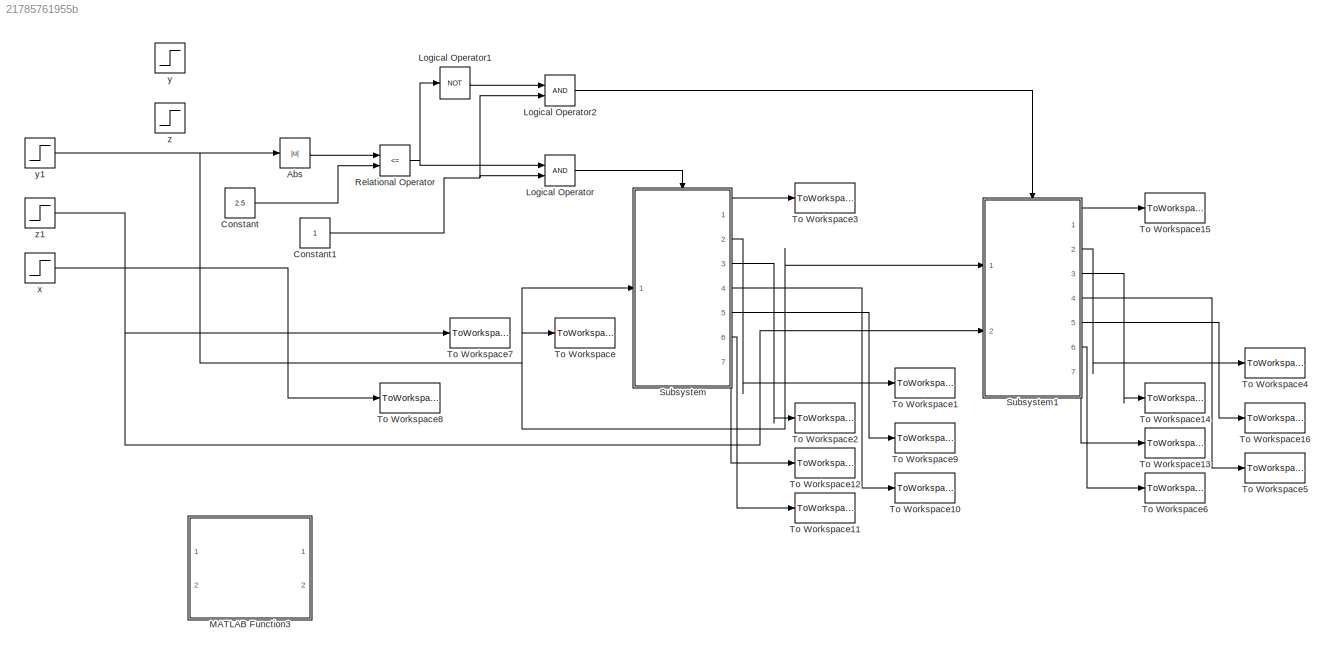
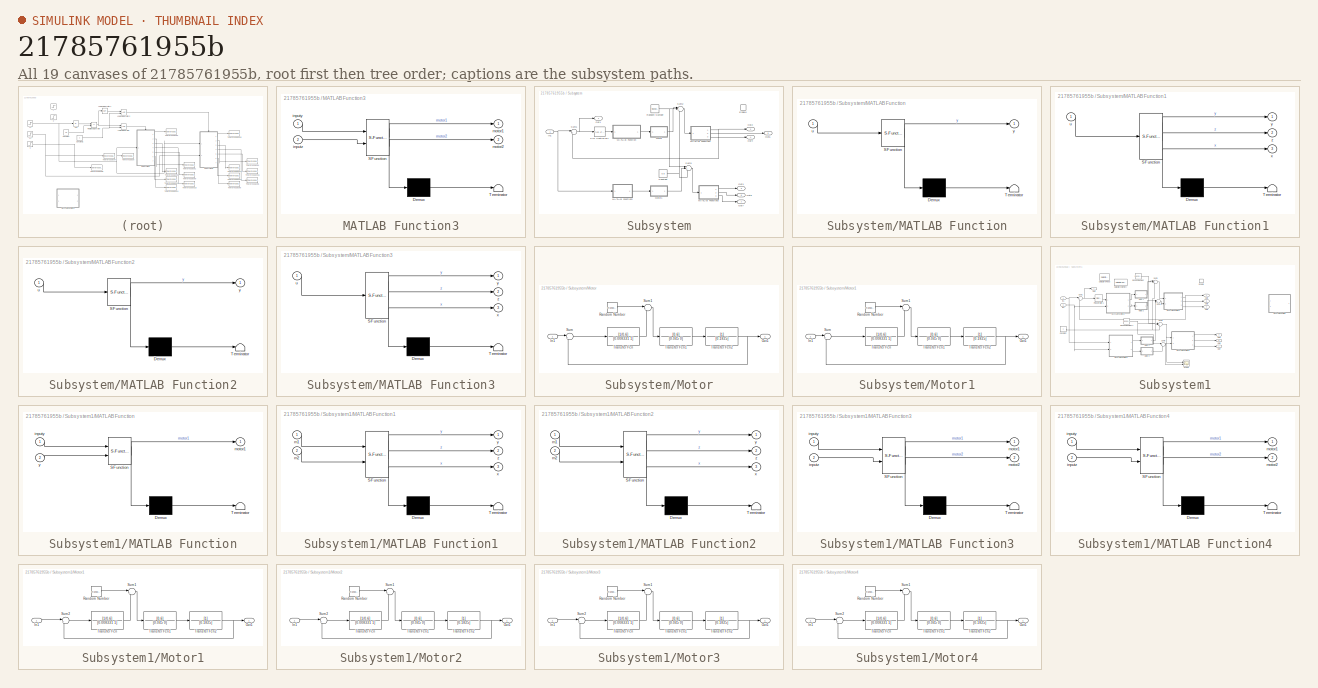
[diagram: thumbnail index - all 19 canvases of the model, root first then tree order]
MODEL slx_21785761955b
KIND model
CONFIG AbsTol = auto
CONFIG FixedStep = 0.01
CONFIG MaxStep = auto
CONFIG MinStep = auto
CONFIG RelTol = 1e-3
CONFIG SampleTimeConstraint = Unconstrained
CONFIG Solver = ode5
CONFIG SolverMode = Auto
CONFIG SolverName = ode5
CONFIG StartTime = 0.0
CONFIG StopTime = 10
BLOCK [Abs] Abs
  SaturateOnIntegerOverflow = off
BLOCK [Constant] Constant
  Value = 2.5
BLOCK [Constant] Constant1
BLOCK [Logic] Logical Operator
  AllPortsSameDT = off
  OutDataTypeStr = boolean
  Ports = [2, 1]
BLOCK [Logic] Logical Operator1
  AllPortsSameDT = off
  Operator = NOT
  OutDataTypeStr = boolean
  Ports = [1, 1]
BLOCK [Logic] Logical Operator2
  AllPortsSameDT = off
  OutDataTypeStr = boolean
  Ports = [2, 1]
BLOCK [SubSystem] MATLAB Function3
  ErrorFcn = Stateflow.Translate.translate
  PermitHierarchicalResolution = ExplicitOnly
  Ports = [2, 2]
  RequestExecContextInheritance = off
  SFBlockType = MATLAB Function
  TreatAsAtomicUnit = on
BLOCK [Demux] MATLAB Function3/ Demux 
  Outputs = 1
  Ports = [1, 1]
BLOCK [S-Function] MATLAB Function3/ SFunction 
  EnableBusSupport = on
  FunctionName = sf_sfun
  PortCounts = [2 3]
  Ports = [2, 3]
  Tag = Stateflow S-Function needle 10
BLOCK [Terminator] MATLAB Function3/ Terminator 
BLOCK [Inport] MATLAB Function3/inputy
  IconDisplay = Port number
BLOCK [Inport] MATLAB Function3/inputz
  IconDisplay = Port number
  Port = 2
BLOCK [Outport] MATLAB Function3/motor1
  IconDisplay = Port number
BLOCK [Outport] MATLAB Function3/motor2
  IconDisplay = Port number
  Port = 2
BLOCK [RelationalOperator] Relational Operator
  InputSameDT = off
  Operator = <=
  OutDataTypeStr = boolean
  Ports = [2, 1]
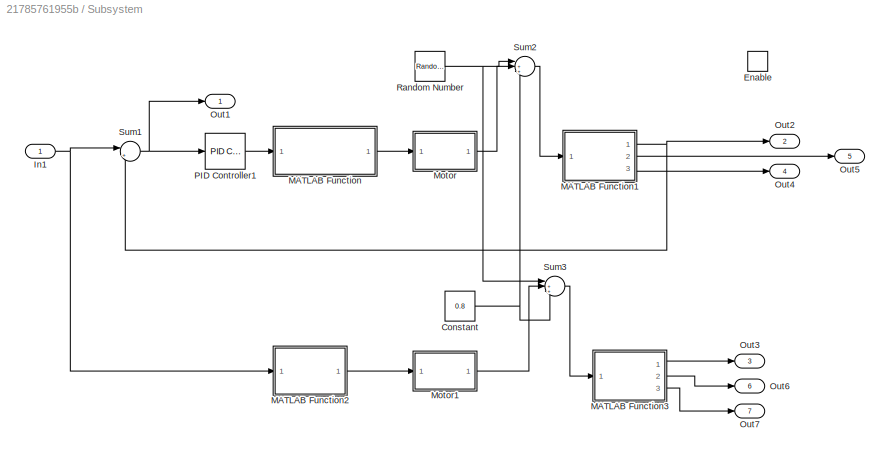
BLOCK [SubSystem] Subsystem
  Ports = [1, 7, 1]
  RequestExecContextInheritance = off
BLOCK [Constant] Subsystem/Constant
  Value = 0.8
BLOCK [EnablePort] Subsystem/Enable
  Ports = []
BLOCK [Inport] Subsystem/In1
  IconDisplay = Port number
BLOCK [SubSystem] Subsystem/MATLAB Function
  ErrorFcn = Stateflow.Translate.translate
  PermitHierarchicalResolution = ExplicitOnly
  Ports = [1, 1]
  RequestExecContextInheritance = off
  SFBlockType = MATLAB Function
  TreatAsAtomicUnit = on
BLOCK [Demux] Subsystem/MATLAB Function/ Demux 
  Outputs = 1
  Ports = [1, 1]
BLOCK [S-Function] Subsystem/MATLAB Function/ SFunction 
  EnableBusSupport = on
  FunctionName = sf_sfun
  PortCounts = [1 2]
  Ports = [1, 2]
  Tag = Stateflow S-Function needle 2
BLOCK [Terminator] Subsystem/MATLAB Function/ Terminator 
BLOCK [Inport] Subsystem/MATLAB Function/u
  IconDisplay = Port number
BLOCK [Outport] Subsystem/MATLAB Function/y
  IconDisplay = Port number
BLOCK [SubSystem] Subsystem/MATLAB Function1
  ErrorFcn = Stateflow.Translate.translate
  PermitHierarchicalResolution = ExplicitOnly
  Ports = [1, 3]
  RequestExecContextInheritance = off
  SFBlockType = MATLAB Function
  TreatAsAtomicUnit = on
BLOCK [Demux] Subsystem/MATLAB Function1/ Demux 
  Outputs = 1
  Ports = [1, 1]
BLOCK [S-Function] Subsystem/MATLAB Function1/ SFunction 
  EnableBusSupport = on
  FunctionName = sf_sfun
  PortCounts = [1 4]
  Ports = [1, 4]
  Tag = Stateflow S-Function needle 1
BLOCK [Terminator] Subsystem/MATLAB Function1/ Terminator 
BLOCK [Inport] Subsystem/MATLAB Function1/u
  IconDisplay = Port number
BLOCK [Outport] Subsystem/MATLAB Function1/x
  IconDisplay = Port number
  Port = 3
BLOCK [Outport] Subsystem/MATLAB Function1/y
  IconDisplay = Port number
BLOCK [Outport] Subsystem/MATLAB Function1/z
  IconDisplay = Port number
  Port = 2
BLOCK [SubSystem] Subsystem/MATLAB Function2
  ErrorFcn = Stateflow.Translate.translate
  PermitHierarchicalResolution = ExplicitOnly
  Ports = [1, 1]
  RequestExecContextInheritance = off
  SFBlockType = MATLAB Function
  TreatAsAtomicUnit = on
BLOCK [Demux] Subsystem/MATLAB Function2/ Demux 
  Outputs = 1
  Ports = [1, 1]
BLOCK [S-Function] Subsystem/MATLAB Function2/ SFunction 
  EnableBusSupport = on
  FunctionName = sf_sfun
  PortCounts = [1 2]
  Ports = [1, 2]
  Tag = Stateflow S-Function needle 3
BLOCK [Terminator] Subsystem/MATLAB Function2/ Terminator 
BLOCK [Inport] Subsystem/MATLAB Function2/u
  IconDisplay = Port number
BLOCK [Outport] Subsystem/MATLAB Function2/y
  IconDisplay = Port number
BLOCK [SubSystem] Subsystem/MATLAB Function3
  ErrorFcn = Stateflow.Translate.translate
  PermitHierarchicalResolution = ExplicitOnly
  Ports = [1, 3]
  RequestExecContextInheritance = off
  SFBlockType = MATLAB Function
  TreatAsAtomicUnit = on
BLOCK [Demux] Subsystem/MATLAB Function3/ Demux 
  Outputs = 1
  Ports = [1, 1]
BLOCK [S-Function] Subsystem/MATLAB Function3/ SFunction 
  EnableBusSupport = on
  FunctionName = sf_sfun
  PortCounts = [1 4]
  Ports = [1, 4]
  Tag = Stateflow S-Function needle 4
BLOCK [Terminator] Subsystem/MATLAB Function3/ Terminator 
BLOCK [Inport] Subsystem/MATLAB Function3/u
  IconDisplay = Port number
BLOCK [Outport] Subsystem/MATLAB Function3/x
  IconDisplay = Port number
  Port = 3
BLOCK [Outport] Subsystem/MATLAB Function3/y
  IconDisplay = Port number
BLOCK [Outport] Subsystem/MATLAB Function3/z
  IconDisplay = Port number
  Port = 2
BLOCK [SubSystem] Subsystem/Motor
  Ports = [1, 1]
  RequestExecContextInheritance = off
BLOCK [Inport] Subsystem/Motor/In1
  IconDisplay = Port number
BLOCK [Outport] Subsystem/Motor/Out1
  IconDisplay = Port number
BLOCK [RandomNumber] Subsystem/Motor/Random Number
  SampleTime = 0.01
  Variance = 0.1
BLOCK [Sum] Subsystem/Motor/Sum
  IconShape = round
  InputSameDT = off
  Inputs = |+-
  OutDataTypeStr = Inherit: Inherit via internal rule
  Ports = [2, 1]
  SaturateOnIntegerOverflow = off
BLOCK [Sum] Subsystem/Motor/Sum1
  IconShape = round
  InputSameDT = off
  Inputs = |++
  OutDataTypeStr = Inherit: Inherit via internal rule
  Ports = [2, 1]
  SaturateOnIntegerOverflow = off
BLOCK [TransferFcn] Subsystem/Motor/Transfer Fcn
  Denominator = [0.008331 1]
  Numerator = [1/0.6]
BLOCK [TransferFcn] Subsystem/Motor/Transfer Fcn1
  Denominator = [0.045 0]
  Numerator = [0.6]
BLOCK [TransferFcn] Subsystem/Motor/Transfer Fcn2
  Denominator = [0.1825]
BLOCK [SubSystem] Subsystem/Motor1
  Ports = [1, 1]
  RequestExecContextInheritance = off
BLOCK [Inport] Subsystem/Motor1/In1
  IconDisplay = Port number
BLOCK [Outport] Subsystem/Motor1/Out1
  IconDisplay = Port number
BLOCK [RandomNumber] Subsystem/Motor1/Random Number
  SampleTime = 0.01
  Variance = 0.1
BLOCK [Sum] Subsystem/Motor1/Sum
  IconShape = round
  InputSameDT = off
  Inputs = |+-
  OutDataTypeStr = Inherit: Inherit via internal rule
  Ports = [2, 1]
  SaturateOnIntegerOverflow = off
BLOCK [Sum] Subsystem/Motor1/Sum1
  IconShape = round
  InputSameDT = off
  Inputs = |++
  OutDataTypeStr = Inherit: Inherit via internal rule
  Ports = [2, 1]
  SaturateOnIntegerOverflow = off
BLOCK [TransferFcn] Subsystem/Motor1/Transfer Fcn
  Denominator = [0.008331 1]
  Numerator = [1/0.6]
BLOCK [TransferFcn] Subsystem/Motor1/Transfer Fcn1
  Denominator = [0.045 0]
  Numerator = [0.6]
BLOCK [TransferFcn] Subsystem/Motor1/Transfer Fcn2
  Denominator = [0.1825]
BLOCK [Outport] Subsystem/Out1
  IconDisplay = Port number
BLOCK [Outport] Subsystem/Out2
  IconDisplay = Port number
  Port = 2
BLOCK [Outport] Subsystem/Out3
  IconDisplay = Port number
  Port = 3
BLOCK [Outport] Subsystem/Out4
  IconDisplay = Port number
  Port = 4
BLOCK [Outport] Subsystem/Out5
  IconDisplay = Port number
  Port = 5
BLOCK [Outport] Subsystem/Out6
  IconDisplay = Port number
  Port = 6
BLOCK [Outport] Subsystem/Out7
  IconDisplay = Port number
  Port = 7
BLOCK [Reference] Subsystem/PID Controller1  REF=simulink/Continuous/PID Controller
  AntiWindupMode = none
  Controller = PID
  ControllerParametersSource = internal
  D = 0
  DGainOutDataTypeStr = Inherit: Inherit via internal rule
  DOutDataTypeStr = Inherit: Inherit via internal rule
  DOutMax = []
  DOutMin = []
  DParamDataTypeStr = Inherit: Inherit via internal rule
  DParamMax = []
  DParamMin = []
  DProdOutDataTypeStr = Inherit: Inherit via internal rule
  DifferentiatorICPrevScaledInput = 0
  DifferentiatorOutDataTypeStr = Inherit: Inherit via internal rule
  DifferentiatorOutMax = []
  DifferentiatorOutMin = []
  ExternalReset = none
  FilterContinuousStateAttributes = ''
  FilterMethod = Forward Euler
  FilterOutDataTypeStr = Inherit: Inherit via internal rule
  FilterOutMax = []
  FilterOutMin = []
  FilterRTWStateStorageClass = Auto
  FilterStateMustResolveToSignalObject = off
  Form = Parallel
  I = 31
  IGainOutDataTypeStr = Inherit: Inherit via internal rule
  IOutDataTypeStr = Inherit: Inherit via internal rule
  IOutMax = []
  IOutMin = []
  IParamDataTypeStr = Inherit: Inherit via internal rule
  IParamMax = []
  IParamMin = []
  IProdOutDataTypeStr = Inherit: Inherit via internal rule
  IgnoreLimit = off
  InitialConditionForFilter = 0
  InitialConditionForIntegrator = 0
  InitialConditionSource = internal
  IntegratorContinuousStateAttributes = ''
  IntegratorMethod = Forward Euler
  IntegratorOutDataTypeStr = Inherit: Inherit via internal rule
  IntegratorOutMax = []
  IntegratorOutMin = []
  IntegratorRTWStateStorageClass = Auto
  IntegratorStateMustResolveToSignalObject = off
  Kb = 1
  KbOutDataTypeStr = Inherit: Inherit via internal rule
  KbOutMax = []
  KbOutMin = []
  KbParamDataTypeStr = Inherit: Inherit via internal rule
  KbParamMax = []
  KbParamMin = []
  Kt = 1
  KtOutDataTypeStr = Inherit: Inherit via internal rule
  KtOutMax = []
  KtOutMin = []
  KtParamDataTypeStr = Inherit: Inherit via internal rule
  KtParamMax = []
  KtParamMin = []
  LimitOutput = off
  LinearizeAsGain = on
  LockScale = off
  LowerSaturationLimit = -inf
  N = 100
  NGainOutDataTypeStr = Inherit: Inherit via internal rule
  NOutDataTypeStr = Inherit: Inherit via internal rule
  NOutMax = []
  NOutMin = []
  NParamDataTypeStr = Inherit: Inherit via internal rule
  NParamMax = []
  NParamMin = []
  NProdOutDataTypeStr = Inherit: Inherit via internal rule
  P = 1.35
  PGainOutDataTypeStr = Inherit: Inherit via internal rule
  POutDataTypeStr = Inherit: Inherit via internal rule
  POutMax = []
  POutMin = []
  PParamDataTypeStr = Inherit: Inherit via internal rule
  PParamMax = []
  PParamMin = []
  PProdOutDataTypeStr = Inherit: Inherit via internal rule
  Ports = [1, 1]
  RndMeth = Floor
  SampleTime = -1
  SaturateOnIntegerOverflow = off
  SaturationOutDataTypeStr = Inherit: Same as input
  SaturationOutMax = []
  SaturationOutMin = []
  SourceBlock = simulink/Continuous/PID Controller
  SourceType = PID 1dof
  SumAccumDataTypeStr = Inherit: Inherit via internal rule
  SumDAccumDataTypeStr = Inherit: Inherit via internal rule
  SumDOutDataTypeStr = Inherit: Inherit via internal rule
  SumDOutMax = []
  SumDOutMin = []
  SumI1AccumDataTypeStr = Inherit: Inherit via internal rule
  SumI1OutDataTypeStr = Inherit: Inherit via internal rule
  SumI1OutMax = []
  SumI1OutMin = []
  SumI2AccumDataTypeStr = Inherit: Inherit via internal rule
  SumI2OutDataTypeStr = Inherit: Inherit via internal rule
  SumI2OutMax = []
  SumI2OutMin = []
  SumI3AccumDataTypeStr = Inherit: Inherit via internal rule
  SumI3OutDataTypeStr = Inherit: Inherit via internal rule
  SumI3OutMax = []
  SumI3OutMin = []
  SumOutDataTypeStr = Inherit: Inherit via internal rule
  SumOutMax = []
  SumOutMin = []
  TimeDomain = Continuous-time
  TrackingMode = off
  UpperSaturationLimit = inf
  UseFilter = on
  ZeroCross = on
BLOCK [RandomNumber] Subsystem/Random Number
  SampleTime = 0.01
  Seed = 1
  Variance = 0.01
BLOCK [Sum] Subsystem/Sum1
  IconShape = round
  InputSameDT = off
  Inputs = |+-
  OutDataTypeStr = Inherit: Inherit via internal rule
  Ports = [2, 1]
  SaturateOnIntegerOverflow = off
BLOCK [Sum] Subsystem/Sum2
  IconShape = round
  InputSameDT = off
  Inputs = |+++
  OutDataTypeStr = Inherit: Inherit via internal rule
  Ports = [3, 1]
  SaturateOnIntegerOverflow = off
BLOCK [Sum] Subsystem/Sum3
  IconShape = round
  InputSameDT = off
  Inputs = |+++
  OutDataTypeStr = Inherit: Inherit via internal rule
  Ports = [3, 1]
  SaturateOnIntegerOverflow = off
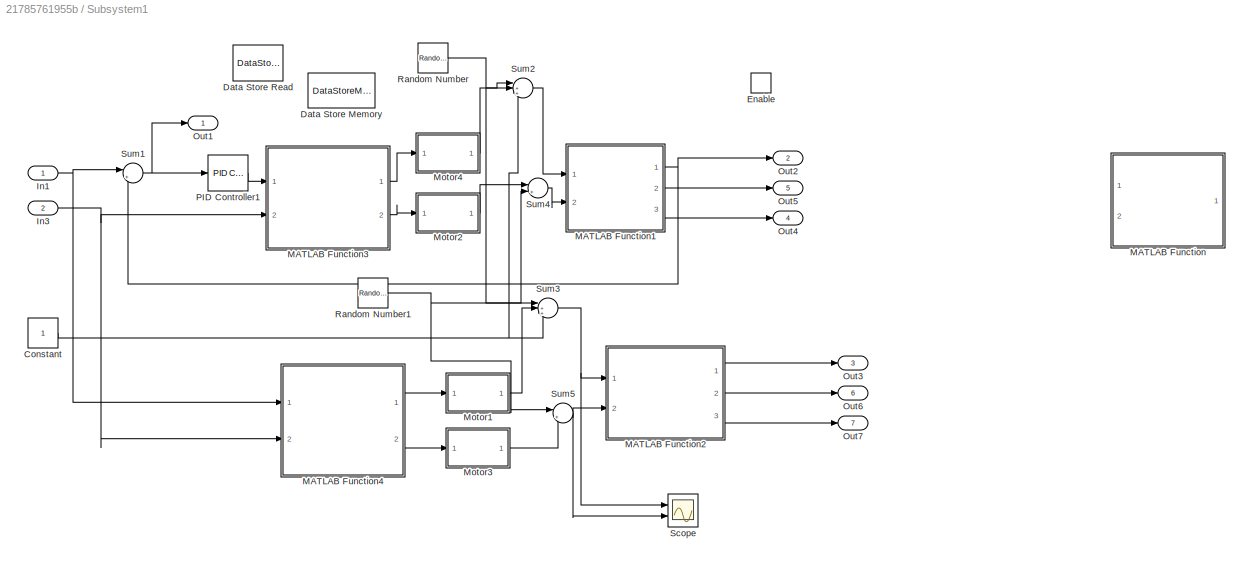
BLOCK [SubSystem] Subsystem1
  Ports = [2, 7, 1]
  RequestExecContextInheritance = off
BLOCK [Constant] Subsystem1/Constant
BLOCK [DataStoreMemory] Subsystem1/Data Store Memory
  DataStoreName = motor2
  OutDataTypeStr = double
  ReadBeforeWriteMsg = warning
  SignalType = real
  WriteAfterReadMsg = warning
  WriteAfterWriteMsg = warning
BLOCK [DataStoreRead] Subsystem1/Data Store Read
  DataStoreName = motor2
  Ports = [0, 1]
BLOCK [EnablePort] Subsystem1/Enable
  Ports = []
BLOCK [Inport] Subsystem1/In1
  IconDisplay = Port number
BLOCK [Inport] Subsystem1/In3
  IconDisplay = Port number
  Port = 2
BLOCK [SubSystem] Subsystem1/MATLAB Function
  ErrorFcn = Stateflow.Translate.translate
  PermitHierarchicalResolution = ExplicitOnly
  Ports = [2, 1]
  RequestExecContextInheritance = off
  SFBlockType = MATLAB Function
  TreatAsAtomicUnit = on
BLOCK [Demux] Subsystem1/MATLAB Function/ Demux 
  Outputs = 1
  Ports = [1, 1]
BLOCK [S-Function] Subsystem1/MATLAB Function/ SFunction 
  EnableBusSupport = on
  FunctionName = sf_sfun
  PortCounts = [2 2]
  Ports = [2, 2]
  Tag = Stateflow S-Function needle 5
BLOCK [Terminator] Subsystem1/MATLAB Function/ Terminator 
BLOCK [Inport] Subsystem1/MATLAB Function/inputy
  IconDisplay = Port number
BLOCK [Outport] Subsystem1/MATLAB Function/motor1
  IconDisplay = Port number
BLOCK [Inport] Subsystem1/MATLAB Function/y
  IconDisplay = Port number
  Port = 2
BLOCK [SubSystem] Subsystem1/MATLAB Function1
  ErrorFcn = Stateflow.Translate.translate
  PermitHierarchicalResolution = ExplicitOnly
  Ports = [2, 3]
  RequestExecContextInheritance = off
  SFBlockType = MATLAB Function
  TreatAsAtomicUnit = on
BLOCK [Demux] Subsystem1/MATLAB Function1/ Demux 
  Outputs = 1
  Ports = [1, 1]
BLOCK [S-Function] Subsystem1/MATLAB Function1/ SFunction 
  EnableBusSupport = on
  FunctionName = sf_sfun
  PortCounts = [2 4]
  Ports = [2, 4]
  Tag = Stateflow S-Function needle 6
BLOCK [Terminator] Subsystem1/MATLAB Function1/ Terminator 
BLOCK [Inport] Subsystem1/MATLAB Function1/m1
  IconDisplay = Port number
BLOCK [Inport] Subsystem1/MATLAB Function1/m2
  IconDisplay = Port number
  Port = 2
BLOCK [Outport] Subsystem1/MATLAB Function1/x
  IconDisplay = Port number
  Port = 3
BLOCK [Outport] Subsystem1/MATLAB Function1/y
  IconDisplay = Port number
BLOCK [Outport] Subsystem1/MATLAB Function1/z
  IconDisplay = Port number
  Port = 2
BLOCK [SubSystem] Subsystem1/MATLAB Function2
  ErrorFcn = Stateflow.Translate.translate
  PermitHierarchicalResolution = ExplicitOnly
  Ports = [2, 3]
  RequestExecContextInheritance = off
  SFBlockType = MATLAB Function
  TreatAsAtomicUnit = on
BLOCK [Demux] Subsystem1/MATLAB Function2/ Demux 
  Outputs = 1
  Ports = [1, 1]
BLOCK [S-Function] Subsystem1/MATLAB Function2/ SFunction 
  EnableBusSupport = on
  FunctionName = sf_sfun
  PortCounts = [2 4]
  Ports = [2, 4]
  Tag = Stateflow S-Function needle 7
BLOCK [Terminator] Subsystem1/MATLAB Function2/ Terminator 
BLOCK [Inport] Subsystem1/MATLAB Function2/m1
  IconDisplay = Port number
BLOCK [Inport] Subsystem1/MATLAB Function2/m2
  IconDisplay = Port number
  Port = 2
BLOCK [Outport] Subsystem1/MATLAB Function2/x
  IconDisplay = Port number
  Port = 3
BLOCK [Outport] Subsystem1/MATLAB Function2/y
  IconDisplay = Port number
BLOCK [Outport] Subsystem1/MATLAB Function2/z
  IconDisplay = Port number
  Port = 2
BLOCK [SubSystem] Subsystem1/MATLAB Function3
  ErrorFcn = Stateflow.Translate.translate
  PermitHierarchicalResolution = ExplicitOnly
  Ports = [2, 2]
  RequestExecContextInheritance = off
  SFBlockType = MATLAB Function
  TreatAsAtomicUnit = on
BLOCK [Demux] Subsystem1/MATLAB Function3/ Demux 
  Outputs = 1
  Ports = [1, 1]
BLOCK [S-Function] Subsystem1/MATLAB Function3/ SFunction 
  EnableBusSupport = on
  FunctionName = sf_sfun
  PortCounts = [2 3]
  Ports = [2, 3]
  Tag = Stateflow S-Function needle 8
BLOCK [Terminator] Subsystem1/MATLAB Function3/ Terminator 
BLOCK [Inport] Subsystem1/MATLAB Function3/inputy
  IconDisplay = Port number
BLOCK [Inport] Subsystem1/MATLAB Function3/inputz
  IconDisplay = Port number
  Port = 2
BLOCK [Outport] Subsystem1/MATLAB Function3/motor1
  IconDisplay = Port number
BLOCK [Outport] Subsystem1/MATLAB Function3/motor2
  IconDisplay = Port number
  Port = 2
BLOCK [SubSystem] Subsystem1/MATLAB Function4
  ErrorFcn = Stateflow.Translate.translate
  PermitHierarchicalResolution = ExplicitOnly
  Ports = [2, 2]
  RequestExecContextInheritance = off
  SFBlockType = MATLAB Function
  TreatAsAtomicUnit = on
BLOCK [Demux] Subsystem1/MATLAB Function4/ Demux 
  Outputs = 1
  Ports = [1, 1]
BLOCK [S-Function] Subsystem1/MATLAB Function4/ SFunction 
  EnableBusSupport = on
  FunctionName = sf_sfun
  PortCounts = [2 3]
  Ports = [2, 3]
  Tag = Stateflow S-Function needle 9
BLOCK [Terminator] Subsystem1/MATLAB Function4/ Terminator 
BLOCK [Inport] Subsystem1/MATLAB Function4/inputy
  IconDisplay = Port number
BLOCK [Inport] Subsystem1/MATLAB Function4/inputz
  IconDisplay = Port number
  Port = 2
BLOCK [Outport] Subsystem1/MATLAB Function4/motor1
  IconDisplay = Port number
BLOCK [Outport] Subsystem1/MATLAB Function4/motor2
  IconDisplay = Port number
  Port = 2
BLOCK [SubSystem] Subsystem1/Motor1
  Ports = [1, 1]
  RequestExecContextInheritance = off
BLOCK [Inport] Subsystem1/Motor1/In1
  IconDisplay = Port number
BLOCK [Outport] Subsystem1/Motor1/Out1
  IconDisplay = Port number
BLOCK [RandomNumber] Subsystem1/Motor1/Random Number
  SampleTime = 0.01
  Variance = 0.1
BLOCK [Sum] Subsystem1/Motor1/Sum1
  IconShape = round
  InputSameDT = off
  Inputs = |++
  OutDataTypeStr = Inherit: Inherit via internal rule
  Ports = [2, 1]
  SaturateOnIntegerOverflow = off
BLOCK [Sum] Subsystem1/Motor1/Sum2
  IconShape = round
  InputSameDT = off
  Inputs = |+-
  OutDataTypeStr = Inherit: Inherit via internal rule
  Ports = [2, 1]
  SaturateOnIntegerOverflow = off
BLOCK [TransferFcn] Subsystem1/Motor1/Transfer Fcn
  Denominator = [0.008331 1]
  Numerator = [1/0.6]
BLOCK [TransferFcn] Subsystem1/Motor1/Transfer Fcn1
  Denominator = [0.045 0]
  Numerator = [0.6]
BLOCK [TransferFcn] Subsystem1/Motor1/Transfer Fcn2
  Denominator = [0.1825]
BLOCK [SubSystem] Subsystem1/Motor2
  Ports = [1, 1]
  RequestExecContextInheritance = off
BLOCK [Inport] Subsystem1/Motor2/In1
  IconDisplay = Port number
BLOCK [Outport] Subsystem1/Motor2/Out1
  IconDisplay = Port number
BLOCK [RandomNumber] Subsystem1/Motor2/Random Number
  SampleTime = 0.01
  Variance = 0.1
BLOCK [Sum] Subsystem1/Motor2/Sum1
  IconShape = round
  InputSameDT = off
  Inputs = |++
  OutDataTypeStr = Inherit: Inherit via internal rule
  Ports = [2, 1]
  SaturateOnIntegerOverflow = off
BLOCK [Sum] Subsystem1/Motor2/Sum2
  IconShape = round
  InputSameDT = off
  Inputs = |+-
  OutDataTypeStr = Inherit: Inherit via internal rule
  Ports = [2, 1]
  SaturateOnIntegerOverflow = off
BLOCK [TransferFcn] Subsystem1/Motor2/Transfer Fcn
  Denominator = [0.008331 1]
  Numerator = [1/0.6]
BLOCK [TransferFcn] Subsystem1/Motor2/Transfer Fcn1
  Denominator = [0.045 0]
  Numerator = [0.6]
BLOCK [TransferFcn] Subsystem1/Motor2/Transfer Fcn2
  Denominator = [0.1825]
BLOCK [SubSystem] Subsystem1/Motor3
  Ports = [1, 1]
  RequestExecContextInheritance = off
BLOCK [Inport] Subsystem1/Motor3/In1
  IconDisplay = Port number
BLOCK [Outport] Subsystem1/Motor3/Out1
  IconDisplay = Port number
BLOCK [RandomNumber] Subsystem1/Motor3/Random Number
  SampleTime = 0.01
  Variance = 0.1
BLOCK [Sum] Subsystem1/Motor3/Sum1
  IconShape = round
  InputSameDT = off
  Inputs = |++
  OutDataTypeStr = Inherit: Inherit via internal rule
  Ports = [2, 1]
  SaturateOnIntegerOverflow = off
BLOCK [Sum] Subsystem1/Motor3/Sum2
  IconShape = round
  InputSameDT = off
  Inputs = |+-
  OutDataTypeStr = Inherit: Inherit via internal rule
  Ports = [2, 1]
  SaturateOnIntegerOverflow = off
BLOCK [TransferFcn] Subsystem1/Motor3/Transfer Fcn
  Denominator = [0.008331 1]
  Numerator = [1/0.6]
BLOCK [TransferFcn] Subsystem1/Motor3/Transfer Fcn1
  Denominator = [0.045 0]
  Numerator = [0.6]
BLOCK [TransferFcn] Subsystem1/Motor3/Transfer Fcn2
  Denominator = [0.1825]
BLOCK [SubSystem] Subsystem1/Motor4
  Ports = [1, 1]
  RequestExecContextInheritance = off
BLOCK [Inport] Subsystem1/Motor4/In1
  IconDisplay = Port number
BLOCK [Outport] Subsystem1/Motor4/Out1
  IconDisplay = Port number
BLOCK [RandomNumber] Subsystem1/Motor4/Random Number
  SampleTime = 0.01
  Variance = 0.1
BLOCK [Sum] Subsystem1/Motor4/Sum1
  IconShape = round
  InputSameDT = off
  Inputs = |++
  OutDataTypeStr = Inherit: Inherit via internal rule
  Ports = [2, 1]
  SaturateOnIntegerOverflow = off
BLOCK [Sum] Subsystem1/Motor4/Sum2
  IconShape = round
  InputSameDT = off
  Inputs = |+-
  OutDataTypeStr = Inherit: Inherit via internal rule
  Ports = [2, 1]
  SaturateOnIntegerOverflow = off
BLOCK [TransferFcn] Subsystem1/Motor4/Transfer Fcn
  Denominator = [0.008331 1]
  Numerator = [1/0.6]
BLOCK [TransferFcn] Subsystem1/Motor4/Transfer Fcn1
  Denominator = [0.045 0]
  Numerator = [0.6]
BLOCK [TransferFcn] Subsystem1/Motor4/Transfer Fcn2
  Denominator = [0.1825]
BLOCK [Outport] Subsystem1/Out1
  IconDisplay = Port number
BLOCK [Outport] Subsystem1/Out2
  IconDisplay = Port number
  Port = 2
BLOCK [Outport] Subsystem1/Out3
  IconDisplay = Port number
  Port = 3
BLOCK [Outport] Subsystem1/Out4
  IconDisplay = Port number
  Port = 4
BLOCK [Outport] Subsystem1/Out5
  IconDisplay = Port number
  Port = 5
BLOCK [Outport] Subsystem1/Out6
  IconDisplay = Port number
  Port = 6
BLOCK [Outport] Subsystem1/Out7
  IconDisplay = Port number
  Port = 7
BLOCK [Reference] Subsystem1/PID Controller1  REF=simulink/Continuous/PID Controller
  AntiWindupMode = none
  Controller = PID
  ControllerParametersSource = internal
  D = 0
  DGainOutDataTypeStr = Inherit: Inherit via internal rule
  DOutDataTypeStr = Inherit: Inherit via internal rule
  DOutMax = []
  DOutMin = []
  DParamDataTypeStr = Inherit: Inherit via internal rule
  DParamMax = []
  DParamMin = []
  DProdOutDataTypeStr = Inherit: Inherit via internal rule
  DifferentiatorICPrevScaledInput = 0
  DifferentiatorOutDataTypeStr = Inherit: Inherit via internal rule
  DifferentiatorOutMax = []
  DifferentiatorOutMin = []
  ExternalReset = none
  FilterContinuousStateAttributes = ''
  FilterMethod = Forward Euler
  FilterOutDataTypeStr = Inherit: Inherit via internal rule
  FilterOutMax = []
  FilterOutMin = []
  FilterRTWStateStorageClass = Auto
  FilterStateMustResolveToSignalObject = off
  Form = Parallel
  I = 20
  IGainOutDataTypeStr = Inherit: Inherit via internal rule
  IOutDataTypeStr = Inherit: Inherit via internal rule
  IOutMax = []
  IOutMin = []
  IParamDataTypeStr = Inherit: Inherit via internal rule
  IParamMax = []
  IParamMin = []
  IProdOutDataTypeStr = Inherit: Inherit via internal rule
  IgnoreLimit = off
  InitialConditionForFilter = 0
  InitialConditionForIntegrator = 0
  InitialConditionSource = internal
  IntegratorContinuousStateAttributes = ''
  IntegratorMethod = Forward Euler
  IntegratorOutDataTypeStr = Inherit: Inherit via internal rule
  IntegratorOutMax = []
  IntegratorOutMin = []
  IntegratorRTWStateStorageClass = Auto
  IntegratorStateMustResolveToSignalObject = off
  Kb = 1
  KbOutDataTypeStr = Inherit: Inherit via internal rule
  KbOutMax = []
  KbOutMin = []
  KbParamDataTypeStr = Inherit: Inherit via internal rule
  KbParamMax = []
  KbParamMin = []
  Kt = 1
  KtOutDataTypeStr = Inherit: Inherit via internal rule
  KtOutMax = []
  KtOutMin = []
  KtParamDataTypeStr = Inherit: Inherit via internal rule
  KtParamMax = []
  KtParamMin = []
  LimitOutput = off
  LinearizeAsGain = on
  LockScale = off
  LowerSaturationLimit = -inf
  N = 100
  NGainOutDataTypeStr = Inherit: Inherit via internal rule
  NOutDataTypeStr = Inherit: Inherit via internal rule
  NOutMax = []
  NOutMin = []
  NParamDataTypeStr = Inherit: Inherit via internal rule
  NParamMax = []
  NParamMin = []
  NProdOutDataTypeStr = Inherit: Inherit via internal rule
  P = 1.3
  PGainOutDataTypeStr = Inherit: Inherit via internal rule
  POutDataTypeStr = Inherit: Inherit via internal rule
  POutMax = []
  POutMin = []
  PParamDataTypeStr = Inherit: Inherit via internal rule
  PParamMax = []
  PParamMin = []
  PProdOutDataTypeStr = Inherit: Inherit via internal rule
  Ports = [1, 1]
  RndMeth = Floor
  SampleTime = -1
  SaturateOnIntegerOverflow = off
  SaturationOutDataTypeStr = Inherit: Same as input
  SaturationOutMax = []
  SaturationOutMin = []
  SourceBlock = simulink/Continuous/PID Controller
  SourceType = PID 1dof
  SumAccumDataTypeStr = Inherit: Inherit via internal rule
  SumDAccumDataTypeStr = Inherit: Inherit via internal rule
  SumDOutDataTypeStr = Inherit: Inherit via internal rule
  SumDOutMax = []
  SumDOutMin = []
  SumI1AccumDataTypeStr = Inherit: Inherit via internal rule
  SumI1OutDataTypeStr = Inherit: Inherit via internal rule
  SumI1OutMax = []
  SumI1OutMin = []
  SumI2AccumDataTypeStr = Inherit: Inherit via internal rule
  SumI2OutDataTypeStr = Inherit: Inherit via internal rule
  SumI2OutMax = []
  SumI2OutMin = []
  SumI3AccumDataTypeStr = Inherit: Inherit via internal rule
  SumI3OutDataTypeStr = Inherit: Inherit via internal rule
  SumI3OutMax = []
  SumI3OutMin = []
  SumOutDataTypeStr = Inherit: Inherit via internal rule
  SumOutMax = []
  SumOutMin = []
  TimeDomain = Continuous-time
  TrackingMode = off
  UpperSaturationLimit = inf
  UseFilter = on
  ZeroCross = on
BLOCK [RandomNumber] Subsystem1/Random Number
  SampleTime = 0.01
  Seed = 1
  Variance = 0.005
BLOCK [RandomNumber] Subsystem1/Random Number1
  SampleTime = 0.01
  Seed = 1
  Variance = 0.005
BLOCK [Scope] Subsystem1/Scope
  Floating = off
  NumInputPorts = 2
  Ports = [2]
  YMax = 5~5
  YMin = -5~-5
BLOCK [Sum] Subsystem1/Sum1
  IconShape = round
  InputSameDT = off
  Inputs = |+-
  OutDataTypeStr = Inherit: Inherit via internal rule
  Ports = [2, 1]
  SaturateOnIntegerOverflow = off
BLOCK [Sum] Subsystem1/Sum2
  IconShape = round
  InputSameDT = off
  Inputs = |+++
  OutDataTypeStr = Inherit: Inherit via internal rule
  Ports = [3, 1]
  SaturateOnIntegerOverflow = off
BLOCK [Sum] Subsystem1/Sum3
  IconShape = round
  InputSameDT = off
  Inputs = |+++
  OutDataTypeStr = Inherit: Inherit via internal rule
  Ports = [3, 1]
  SaturateOnIntegerOverflow = off
BLOCK [Sum] Subsystem1/Sum4
  IconShape = round
  InputSameDT = off
  Inputs = |++
  OutDataTypeStr = Inherit: Inherit via internal rule
  Ports = [2, 1]
  SaturateOnIntegerOverflow = off
BLOCK [Sum] Subsystem1/Sum5
  IconShape = round
  InputSameDT = off
  Inputs = |++
  OutDataTypeStr = Inherit: Inherit via internal rule
  Ports = [2, 1]
  SaturateOnIntegerOverflow = off
BLOCK [ToWorkspace] To Workspace
  FixptAsFi = on
  MaxDataPoints = inf
  Ports = [1]
  SampleTime = -1
  Save2DSignal = 3-D array (concatenate along third dimension)
  SaveFormat = Timeseries
  VariableName = desiredY
BLOCK [ToWorkspace] To Workspace1
  FixptAsFi = on
  MaxDataPoints = inf
  Ports = [1]
  SampleTime = -1
  Save2DSignal = 3-D array (concatenate along third dimension)
  SaveFormat = Timeseries
  VariableName = out_pid_y
BLOCK [ToWorkspace] To Workspace10
  FixptAsFi = on
  MaxDataPoints = inf
  Ports = [1]
  SampleTime = -1
  Save2DSignal = 3-D array (concatenate along third dimension)
  SaveFormat = Timeseries
  VariableName = out_pid_x
BLOCK [ToWorkspace] To Workspace11
  FixptAsFi = on
  MaxDataPoints = inf
  Ports = [1]
  SampleTime = -1
  Save2DSignal = 3-D array (concatenate along third dimension)
  SaveFormat = Timeseries
  VariableName = out_prez
BLOCK [ToWorkspace] To Workspace12
  FixptAsFi = on
  MaxDataPoints = inf
  Ports = [1]
  SampleTime = -1
  Save2DSignal = 3-D array (concatenate along third dimension)
  SaveFormat = Timeseries
  VariableName = out_prex
BLOCK [ToWorkspace] To Workspace13
  FixptAsFi = on
  MaxDataPoints = inf
  Ports = [1]
  SampleTime = -1
  Save2DSignal = 3-D array (concatenate along third dimension)
  SaveFormat = Timeseries
  VariableName = out_prex1
BLOCK [ToWorkspace] To Workspace14
  FixptAsFi = on
  MaxDataPoints = inf
  Ports = [1]
  SampleTime = -1
  Save2DSignal = 3-D array (concatenate along third dimension)
  SaveFormat = Timeseries
  VariableName = out_pre1
BLOCK [ToWorkspace] To Workspace15
  FixptAsFi = on
  MaxDataPoints = inf
  Ports = [1]
  SampleTime = -1
  Save2DSignal = 3-D array (concatenate along third dimension)
  SaveFormat = Timeseries
  VariableName = Error1
BLOCK [ToWorkspace] To Workspace16
  FixptAsFi = on
  MaxDataPoints = inf
  Ports = [1]
  SampleTime = -1
  Save2DSignal = 3-D array (concatenate along third dimension)
  SaveFormat = Timeseries
  VariableName = out_pid_z1
BLOCK [ToWorkspace] To Workspace2
  FixptAsFi = on
  MaxDataPoints = inf
  Ports = [1]
  SampleTime = -1
  Save2DSignal = 3-D array (concatenate along third dimension)
  SaveFormat = Timeseries
  VariableName = out_pre
BLOCK [ToWorkspace] To Workspace3
  FixptAsFi = on
  MaxDataPoints = inf
  Ports = [1]
  SampleTime = -1
  Save2DSignal = 3-D array (concatenate along third dimension)
  SaveFormat = Timeseries
  VariableName = Error
BLOCK [ToWorkspace] To Workspace4
  FixptAsFi = on
  MaxDataPoints = inf
  Ports = [1]
  SampleTime = -1
  Save2DSignal = 3-D array (concatenate along third dimension)
  SaveFormat = Timeseries
  VariableName = out_pid_y1
BLOCK [ToWorkspace] To Workspace5
  FixptAsFi = on
  MaxDataPoints = inf
  Ports = [1]
  SampleTime = -1
  Save2DSignal = 3-D array (concatenate along third dimension)
  SaveFormat = Timeseries
  VariableName = out_pid_x1
BLOCK [ToWorkspace] To Workspace6
  FixptAsFi = on
  MaxDataPoints = inf
  Ports = [1]
  SampleTime = -1
  Save2DSignal = 3-D array (concatenate along third dimension)
  SaveFormat = Timeseries
  VariableName = out_prez1
BLOCK [ToWorkspace] To Workspace7
  FixptAsFi = on
  MaxDataPoints = inf
  Ports = [1]
  SampleTime = -1
  Save2DSignal = 3-D array (concatenate along third dimension)
  SaveFormat = Timeseries
  VariableName = desiredZ
BLOCK [ToWorkspace] To Workspace8
  FixptAsFi = on
  MaxDataPoints = inf
  Ports = [1]
  SampleTime = -1
  Save2DSignal = 3-D array (concatenate along third dimension)
  SaveFormat = Timeseries
  VariableName = desiredX
BLOCK [ToWorkspace] To Workspace9
  FixptAsFi = on
  MaxDataPoints = inf
  Ports = [1]
  SampleTime = -1
  Save2DSignal = 3-D array (concatenate along third dimension)
  SaveFormat = Timeseries
  VariableName = out_pid_z
BLOCK [Step] x
  After = 0
  SampleTime = 0
BLOCK [Step] y
  After = 3.53
  SampleTime = 0
  Time = 0.2
BLOCK [Step] y1
  After = 2.32
  SampleTime = 0
  Time = 0.2
BLOCK [Step] z
  SampleTime = 0
  Time = 0.2
BLOCK [Step] z1
  After = 5 - sqrt(5*5-2.32*2.32)
  SampleTime = 0
  Time = 0.2
LINE Abs:1 -> Relational Operator:1
NET Constant1:1 -> Logical Operator2:2, Logical Operator:2
LINE Constant:1 -> Relational Operator:2
LINE Logical Operator1:1 -> Logical Operator2:1
LINE Logical Operator2:1 -> Subsystem1:enable
LINE Logical Operator:1 -> Subsystem:enable
NET Relational Operator:1 -> Logical Operator1:1, Logical Operator:1
NET Subsystem/Constant:1 -> Subsystem/Sum2:3, Subsystem/Sum3:3
NET Subsystem/In1:1 -> Subsystem/MATLAB Function2:1, Subsystem/Sum1:1
NET Subsystem/MATLAB Function1:1 -> Subsystem/Out2:1, Subsystem/Sum1:2
LINE Subsystem/MATLAB Function1:2 -> Subsystem/Out5:1
LINE Subsystem/MATLAB Function1:3 -> Subsystem/Out4:1
LINE Subsystem/MATLAB Function2:1 -> Subsystem/Motor1:1
LINE Subsystem/MATLAB Function3:1 -> Subsystem/Out3:1
LINE Subsystem/MATLAB Function3:2 -> Subsystem/Out6:1
LINE Subsystem/MATLAB Function3:3 -> Subsystem/Out7:1
LINE Subsystem/MATLAB Function:1 -> Subsystem/Motor:1
LINE Subsystem/Motor/In1:1 -> Subsystem/Motor/Sum:1
LINE Subsystem/Motor/Random Number:1 -> Subsystem/Motor/Sum1:1
LINE Subsystem/Motor/Sum1:1 -> Subsystem/Motor/Transfer Fcn1:1
LINE Subsystem/Motor/Sum:1 -> Subsystem/Motor/Transfer Fcn:1
LINE Subsystem/Motor/Transfer Fcn1:1 -> Subsystem/Motor/Transfer Fcn2:1
NET Subsystem/Motor/Transfer Fcn2:1 -> Subsystem/Motor/Out1:1, Subsystem/Motor/Sum:2
LINE Subsystem/Motor/Transfer Fcn:1 -> Subsystem/Motor/Sum1:2
LINE Subsystem/Motor1/In1:1 -> Subsystem/Motor1/Sum:1
LINE Subsystem/Motor1/Random Number:1 -> Subsystem/Motor1/Sum1:1
LINE Subsystem/Motor1/Sum1:1 -> Subsystem/Motor1/Transfer Fcn1:1
LINE Subsystem/Motor1/Sum:1 -> Subsystem/Motor1/Transfer Fcn:1
LINE Subsystem/Motor1/Transfer Fcn1:1 -> Subsystem/Motor1/Transfer Fcn2:1
NET Subsystem/Motor1/Transfer Fcn2:1 -> Subsystem/Motor1/Out1:1, Subsystem/Motor1/Sum:2
LINE Subsystem/Motor1/Transfer Fcn:1 -> Subsystem/Motor1/Sum1:2
LINE Subsystem/Motor1:1 -> Subsystem/Sum3:2
LINE Subsystem/Motor:1 -> Subsystem/Sum2:2
LINE Subsystem/PID Controller1:1 -> Subsystem/MATLAB Function:1
NET Subsystem/Random Number:1 -> Subsystem/Sum2:1, Subsystem/Sum3:1
NET Subsystem/Sum1:1 -> Subsystem/Out1:1, Subsystem/PID Controller1:1
LINE Subsystem/Sum2:1 -> Subsystem/MATLAB Function1:1
LINE Subsystem/Sum3:1 -> Subsystem/MATLAB Function3:1
NET Subsystem1/Constant:1 -> Subsystem1/Sum2:3, Subsystem1/Sum3:3
NET Subsystem1/In1:1 -> Subsystem1/MATLAB Function4:1, Subsystem1/Sum1:1
NET Subsystem1/In3:1 -> Subsystem1/MATLAB Function3:2, Subsystem1/MATLAB Function4:2
NET Subsystem1/MATLAB Function1:1 -> Subsystem1/Out2:1, Subsystem1/Sum1:2
LINE Subsystem1/MATLAB Function1:2 -> Subsystem1/Out5:1
LINE Subsystem1/MATLAB Function1:3 -> Subsystem1/Out4:1
LINE Subsystem1/MATLAB Function2:1 -> Subsystem1/Out3:1
LINE Subsystem1/MATLAB Function2:2 -> Subsystem1/Out6:1
LINE Subsystem1/MATLAB Function2:3 -> Subsystem1/Out7:1
LINE Subsystem1/MATLAB Function3:1 -> Subsystem1/Motor4:1
LINE Subsystem1/MATLAB Function3:2 -> Subsystem1/Motor2:1
LINE Subsystem1/MATLAB Function4:1 -> Subsystem1/Motor1:1
LINE Subsystem1/MATLAB Function4:2 -> Subsystem1/Motor3:1
LINE Subsystem1/Motor1/In1:1 -> Subsystem1/Motor1/Sum2:1
LINE Subsystem1/Motor1/Random Number:1 -> Subsystem1/Motor1/Sum1:1
LINE Subsystem1/Motor1/Sum1:1 -> Subsystem1/Motor1/Transfer Fcn1:1
LINE Subsystem1/Motor1/Sum2:1 -> Subsystem1/Motor1/Transfer Fcn:1
LINE Subsystem1/Motor1/Transfer Fcn1:1 -> Subsystem1/Motor1/Transfer Fcn2:1
NET Subsystem1/Motor1/Transfer Fcn2:1 -> Subsystem1/Motor1/Out1:1, Subsystem1/Motor1/Sum2:2
LINE Subsystem1/Motor1/Transfer Fcn:1 -> Subsystem1/Motor1/Sum1:2
LINE Subsystem1/Motor1:1 -> Subsystem1/Sum3:2
LINE Subsystem1/Motor2/In1:1 -> Subsystem1/Motor2/Sum2:1
LINE Subsystem1/Motor2/Random Number:1 -> Subsystem1/Motor2/Sum1:1
LINE Subsystem1/Motor2/Sum1:1 -> Subsystem1/Motor2/Transfer Fcn1:1
LINE Subsystem1/Motor2/Sum2:1 -> Subsystem1/Motor2/Transfer Fcn:1
LINE Subsystem1/Motor2/Transfer Fcn1:1 -> Subsystem1/Motor2/Transfer Fcn2:1
NET Subsystem1/Motor2/Transfer Fcn2:1 -> Subsystem1/Motor2/Out1:1, Subsystem1/Motor2/Sum2:2
LINE Subsystem1/Motor2/Transfer Fcn:1 -> Subsystem1/Motor2/Sum1:2
LINE Subsystem1/Motor2:1 -> Subsystem1/Sum4:1
LINE Subsystem1/Motor3/In1:1 -> Subsystem1/Motor3/Sum2:1
LINE Subsystem1/Motor3/Random Number:1 -> Subsystem1/Motor3/Sum1:1
LINE Subsystem1/Motor3/Sum1:1 -> Subsystem1/Motor3/Transfer Fcn1:1
LINE Subsystem1/Motor3/Sum2:1 -> Subsystem1/Motor3/Transfer Fcn:1
LINE Subsystem1/Motor3/Transfer Fcn1:1 -> Subsystem1/Motor3/Transfer Fcn2:1
NET Subsystem1/Motor3/Transfer Fcn2:1 -> Subsystem1/Motor3/Out1:1, Subsystem1/Motor3/Sum2:2
LINE Subsystem1/Motor3/Transfer Fcn:1 -> Subsystem1/Motor3/Sum1:2
LINE Subsystem1/Motor3:1 -> Subsystem1/Sum5:2
LINE Subsystem1/Motor4/In1:1 -> Subsystem1/Motor4/Sum2:1
LINE Subsystem1/Motor4/Random Number:1 -> Subsystem1/Motor4/Sum1:1
LINE Subsystem1/Motor4/Sum1:1 -> Subsystem1/Motor4/Transfer Fcn1:1
LINE Subsystem1/Motor4/Sum2:1 -> Subsystem1/Motor4/Transfer Fcn:1
LINE Subsystem1/Motor4/Transfer Fcn1:1 -> Subsystem1/Motor4/Transfer Fcn2:1
NET Subsystem1/Motor4/Transfer Fcn2:1 -> Subsystem1/Motor4/Out1:1, Subsystem1/Motor4/Sum2:2
LINE Subsystem1/Motor4/Transfer Fcn:1 -> Subsystem1/Motor4/Sum1:2
LINE Subsystem1/Motor4:1 -> Subsystem1/Sum2:2
LINE Subsystem1/PID Controller1:1 -> Subsystem1/MATLAB Function3:1
NET Subsystem1/Random Number1:1 -> Subsystem1/Sum4:2, Subsystem1/Sum5:1
NET Subsystem1/Random Number:1 -> Subsystem1/Sum2:1, Subsystem1/Sum3:1
NET Subsystem1/Sum1:1 -> Subsystem1/Out1:1, Subsystem1/PID Controller1:1
LINE Subsystem1/Sum2:1 -> Subsystem1/MATLAB Function1:1
NET Subsystem1/Sum3:1 -> Subsystem1/MATLAB Function2:1, Subsystem1/Scope:1
LINE Subsystem1/Sum4:1 -> Subsystem1/MATLAB Function1:2
NET Subsystem1/Sum5:1 -> Subsystem1/MATLAB Function2:2, Subsystem1/Scope:2
LINE Subsystem1:1 -> To Workspace15:1
LINE Subsystem1:2 -> To Workspace4:1
LINE Subsystem1:3 -> To Workspace14:1
LINE Subsystem1:4 -> To Workspace5:1
LINE Subsystem1:5 -> To Workspace16:1
LINE Subsystem1:6 -> To Workspace6:1
LINE Subsystem1:7 -> To Workspace13:1
LINE Subsystem:1 -> To Workspace3:1
LINE Subsystem:2 -> To Workspace1:1
LINE Subsystem:3 -> To Workspace2:1
LINE Subsystem:4 -> To Workspace10:1
LINE Subsystem:5 -> To Workspace9:1
LINE Subsystem:6 -> To Workspace11:1
LINE Subsystem:7 -> To Workspace12:1
LINE x:1 -> To Workspace8:1
NET y1:1 -> Abs:1, Subsystem1:1, Subsystem:1, To Workspace:1
NET z1:1 -> Subsystem1:2, To Workspace7:1
note: NET lines group one-source signal fan-out (src -> all destinations, sorted); 1:1 wires keep LINE
CHART Subsystem/MATLAB Function1 states=1 transitions=1
  STATE_LABEL 'eML_blk_kernel()'
  STATE_LABEL 'SCRIPT:\nfunction [y,z,x] = forward(u)\n%#codegen\n\n% y = u;\n% mid = asin(u/5);\n% \n% mid2 = 3 * tan(mid);\n% \n% ymid = mid2 / 0.2;\n% \n% y = pi * ymid;\n\nd = 0.2 * u / pi;\n\ntheta = atan2(d,3);\n\ny = sin(theta) * 5;\n\nx = 0;\n\nz = 5 - sqrt(5^2 - y^2);\n'
CHART Subsystem/MATLAB Function states=1 transitions=1
  STATE_LABEL 'eML_blk_kernel()'
  STATE_LABEL 'SCRIPT:\nfunction y = inv(u)\n%#codegen\n% u = 2.5\n% y = u;\nmid = asin(u/5);\n\nmid2 = 3 * tan(mid);\n\nymid = mid2 / 0.2;\n\ny = pi * ymid;'
CHART Subsystem/MATLAB Function2 states=1 transitions=1
  STATE_LABEL 'eML_blk_kernel()'
  STATE_LABEL 'SCRIPT:\nfunction y = inv(u)\n%#codegen\n\n% y = u;\nmid = asin(u/5);\n\nmid2 = 3 * tan(mid);\n\nymid = mid2 / 0.2;\n\ny = pi * ymid;'
CHART Subsystem/MATLAB Function3 states=1 transitions=1
  STATE_LABEL 'eML_blk_kernel()'
  STATE_LABEL 'SCRIPT:\nfunction [y,z,x] = forward(u)\n%#codegen\n\n% y = u;\n% mid = asin(u/5);\n% \n% mid2 = 3 * tan(mid);\n% \n% ymid = mid2 / 0.2;\n% \n% y = pi * ymid;\n\nd = 0.2 * u / pi;\n\ntheta = atan2(d,3);\n\ny = sin(theta) * 5;\n\nx = 0;\n\nz = 5 - sqrt(5^2 - y^2);'
CHART Subsystem1/MATLAB Function states=1 transitions=1
  STATE_LABEL 'eML_blk_kernel()'
  STATE_LABEL 'SCRIPT:\nfunction motor1 = inv(inputy,y)\n%#codegen\n% u = 2.5\n% y = u;\n% ToDeg = 180 / pi;\n% \n% ToRad = pi / 180;\nglobal motor2\n\nu = 2.5;\n\nmid = asin(u/5);\n\nmid2 = 3 * tan(mid);\n\nymid = mid2 / 0.2;\n\nmotor1 = pi * ymid;\n\n% L = abs(mid2) + abs(inputy);\n\n% ylow = sqrt(5^2 - (5 - inputz)^2);\n% \n% yl = L - ylow;\n% \n% motor2mid = yl / 0.2;\n% \n% motor2 = motor2mid * pi;\n\nif y >= 0\n    if inputy > 0.1\n     ...<+263ch>'
CHART Subsystem1/MATLAB Function1 states=1 transitions=1
  STATE_LABEL 'eML_blk_kernel()'
  STATE_LABEL 'SCRIPT:\nfunction [y,z,x] = forward(m1,m2)\n%#codegen\n\n% y = u;\n% mid = asin(u/5);\n% \n% mid2 = 3 * tan(mid);\n% \n% ymid = mid2 / 0.2;\n% \n% y = pi * ymid;\n\nd1 = 0.2 * m1 / pi;\n\nd2 = 0.2 * m2 / pi;\n\nD = d1 + d2;\n\ntheta = atan2(D,3);\n\nx = 0;\n\n% z = sqrt(5^2 + y^2);\n\ny1 = 5 * sin(theta);\n\ny = y1 + d2;\n\n% z = 5 - 5 * cos(theta);\n\nz = 5 - sqrt(5*5- y1*y1);\n\n% z = d1;\n\n\n'
CHART Subsystem1/MATLAB Function2 states=1 transitions=1
  STATE_LABEL 'eML_blk_kernel()'
  STATE_LABEL 'SCRIPT:\nfunction [y,z,x] = forward(m1,m2)\n%#codegen\n\n% y = u;\n% mid = asin(u/5);\n% \n% mid2 = 3 * tan(mid);\n% \n% ymid = mid2 / 0.2;\n% \n% y = pi * ymid;\n\nd1 = 0.2 * m1 / pi;\n\nd2 = 0.2 * m2 / pi;\n\nD = d1 + d2;\n\ntheta = atan2(D,3);\n\nx = 0;\n\n% z = sqrt(5^2 + y^2);\n\ny1 = 5 * sin(theta);\n\ny = abs(y1) + abs(d2);\n\nz = 5 - 5 * cos(theta);\n'
CHART Subsystem1/MATLAB Function3 states=1 transitions=1
  STATE_LABEL 'eML_blk_kernel()'
  STATE_LABEL 'SCRIPT:\nfunction [motor1,motor2] = inv(inputy,inputz)\n%#codegen\n% u = 2.5\n% y = u;\n% ToDeg = 180 / pi;\n% \n% ToRad = pi / 180;\n\nu = 2.5;\n\nmid = asin(u/5);\n\nmid2 = 3 * tan(mid);\n\nymid = mid2 / 0.2;%转动电机的总圈数\n\nmotor1 = pi * ymid;%圈数 × 2pi\n\nX = 5 - inputz;\n\nY = sqrt(5^2 - X^2);\n\nmotor2move = inputy - Y;\n\nmotor2mid = motor2move / 0.2;\n\nmotor2 = pi * motor2mid;\n\n\n\n\n\n\n\n\n'  <repeated x3 — deduplicated; at blocks: MATLAB Function3, MATLAB Function4>
CHART Subsystem1/MATLAB Function4 states=1 transitions=1
  STATE_LABEL 'eML_blk_kernel()'
CHART MATLAB Function3 states=1 transitions=1
  STATE_LABEL 'eML_blk_kernel()'
